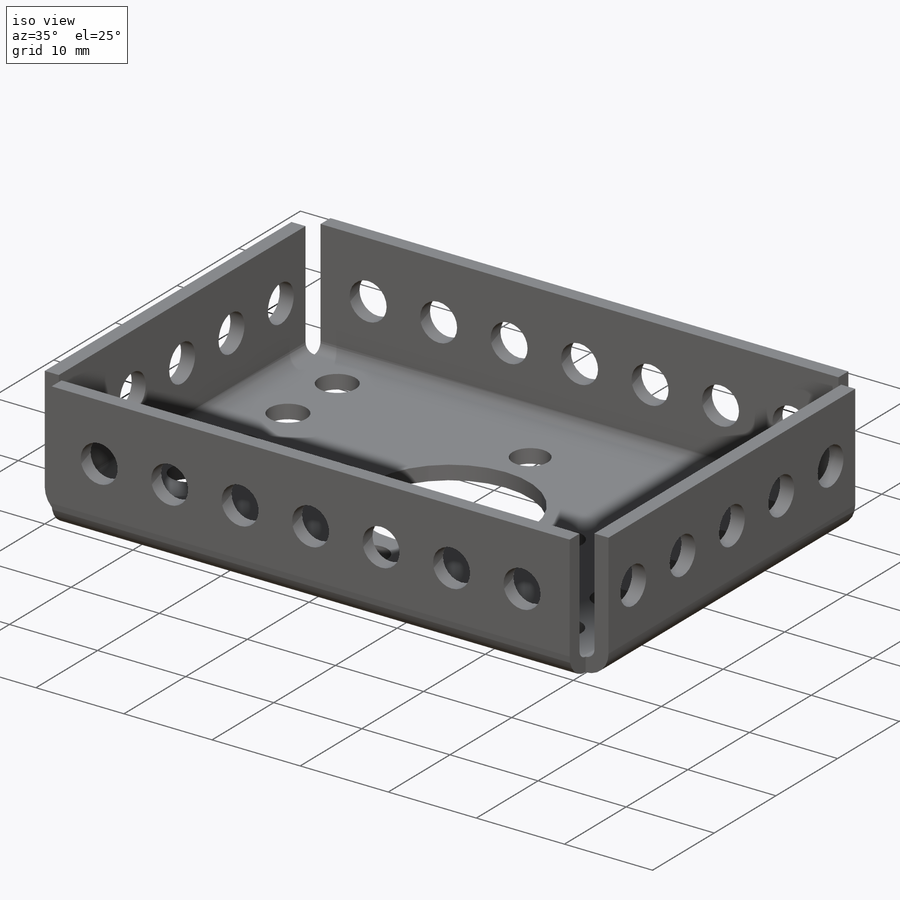
[diagram: iso view]
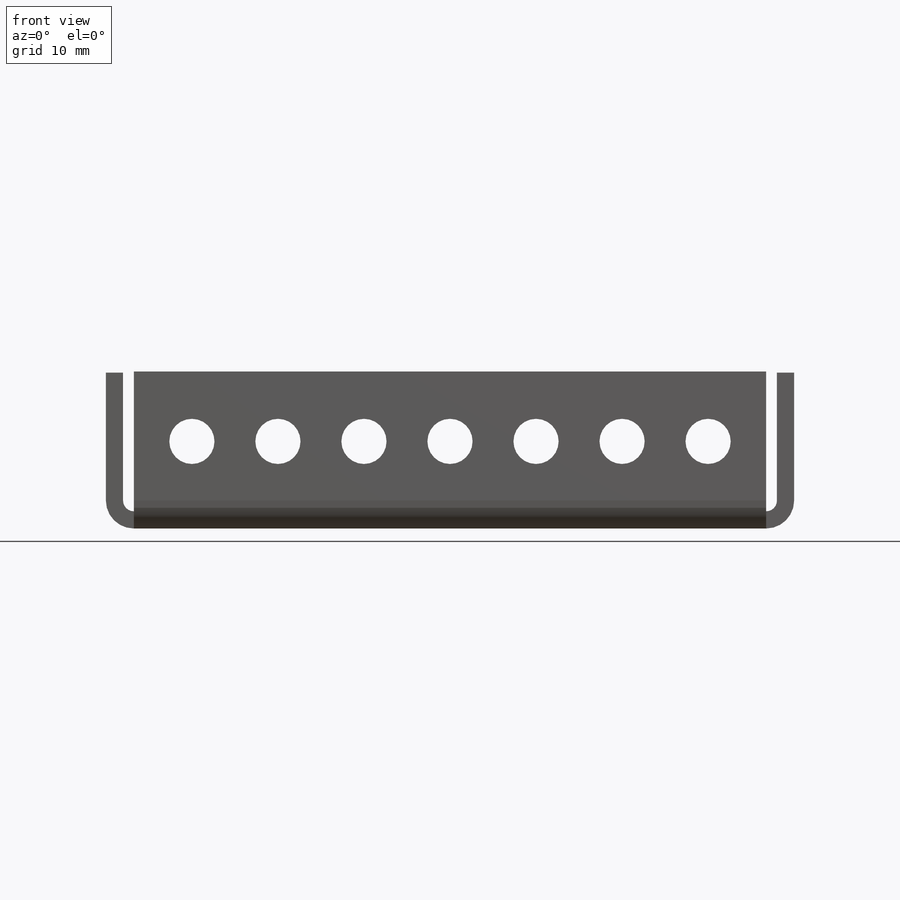
[diagram: front view]
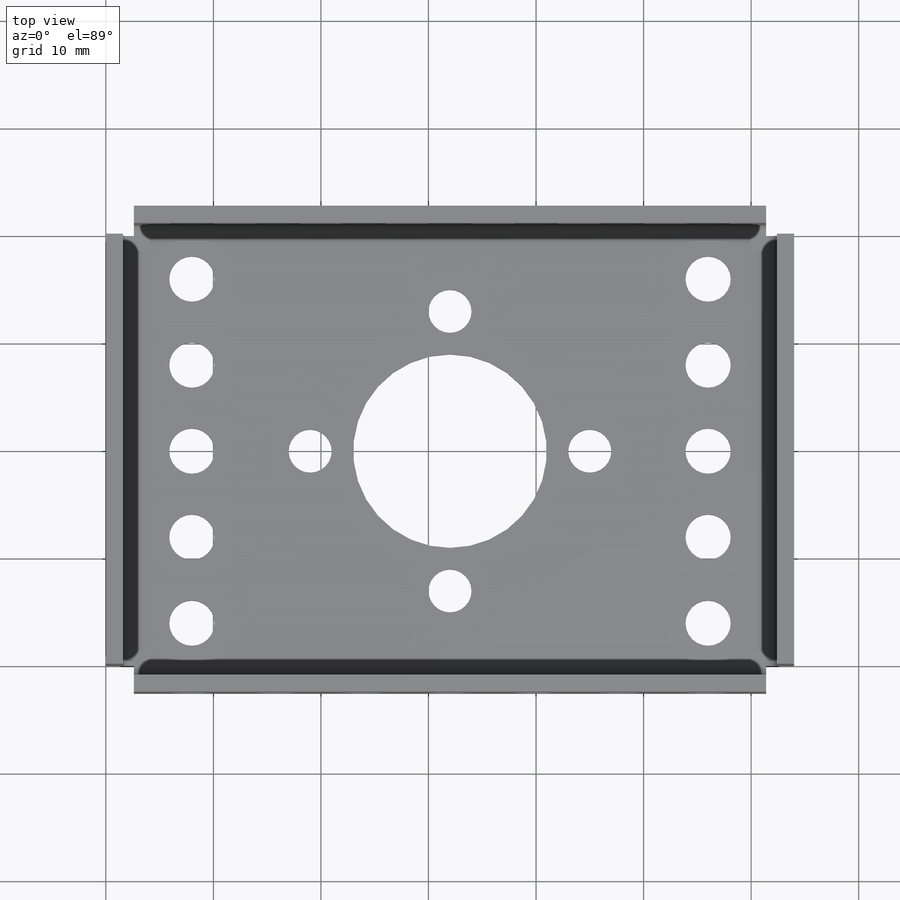
[diagram: top view]
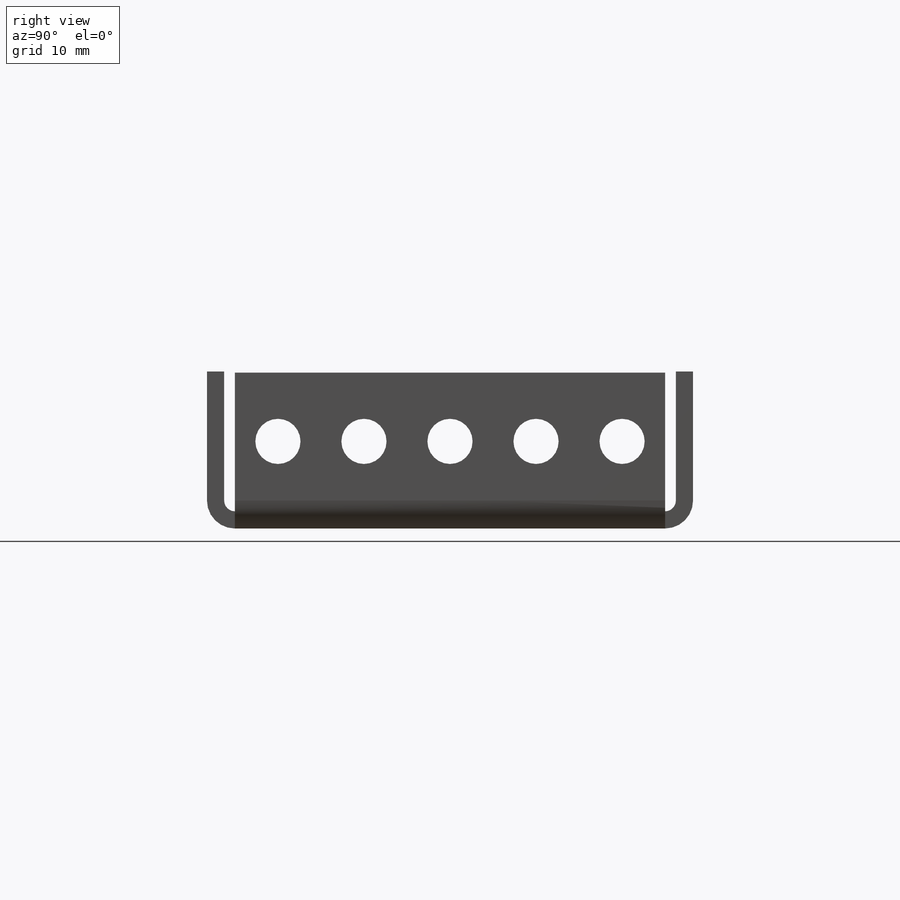
[diagram: right view]
SOLIDWORKS PART (.sldprt)
format: sldprt  version: not decoded by parser v0  size: 642,048 bytes
history: native  units: mm
features: sketch x27, sheet_metal_op x8, cut_extrude x4, pattern_linear x3, material x1, extrude x1 + 8 further entries (+13 scaffold rows collapsed; 8 parser-record rows omitted)
feature tree (73):
  scaffold x13  (default folders/planes/origin — collapsed)
  material  "1060 Alloy"
  sketch  "Sketch1"  dims[D1=40.0mm D2=64.0mm]
  extrude  "Boss-Extrude1"  Depth=1.6mm
  sketch  "Sketch2"  dims[D1=4.2mm D2=8.0mm D3=4.0mm]
  cut_extrude  "Cut-Extrude1"  [1 undecoded]
  pattern_linear  "LPattern1"  Count1=2 Spacing1=48mm Spacing2=0mm
  sketch  "Sketch12"
  sketch  "Sketch13"  dims[c1.D1=1.0mm c1.D4=90.0deg c1.EdgeBend2=0.0 c2.D1=1.0mm c2.D4=90.0deg c3.D1=0.5mm c3.D6=10.0mm c3.D7=14.5mm c3.D8=0.5mm]
  sketch  "Sketch14"  dims[c1.D1=~2.54843mm c1.D2=~2.54843mm c1.D3=4.2mm c2.D1=4.0mm c2.D2=8.1mm]
  cut_extrude  "Cut-Extrude2"  [1 undecoded]
  pattern_linear  "LPattern2"  Spacing1=8mm Spacing2=8mm  [1 undecoded]
  sketch  "Sketch23"
  sketch  "Sketch24"  dims[c1.EdgeBend3=0.0 c1.D1=1.0mm c1.D4=90.0deg c1.EdgeBend4=0.0 c2.D1=1.0mm c2.D4=90.0deg c3.D1=1.0mm c3.D6=10.0mm c3.D7=13.0mm c3.D8=0.5mm]
  sketch  "Sketch25"  dims[D3=4.2mm D1=8.0mm D2=8.1mm]
  cut_extrude  "Cut-Extrude3"  [1 undecoded]
  pattern_linear  "LPattern3"  Spacing1=0mm Spacing2=8mm  [1 undecoded]
  sketch  "Sketch26"  dims[D1=18.0mm D2=26.0mm D3=4.0mm D4=0.0mm]
  cut_extrude  "Cut-Extrude4"  [1 undecoded]
  sketch  "Bend-Lines1"
  sketch  "Bounding-Box1"
  sheet_metal_op  "Sheet-Metal(4)"
  "Flat-Pattern(4)"
  sketch  "Bend-Lines2"
  sketch  "Bounding-Box2"
  parser-record x8  (decoder bookkeeping rows leaked as tree rows — omitted from the tree; the rows remain in map.json)
  sheet_metal_op  "Sheet-Metal(5)"
  "Flat-Pattern(4)"
  sketch  "Bend-Lines2"
  sketch  "Bounding-Box2"
  sheet_metal_op  "Sheet-Metal(6)"
  "Flat-Pattern(4)"
  sketch  "Bend-Lines2"
  sketch  "Bounding-Box2"
  sheet_metal_op  "Sheet-Metal(7)"
  "Flat-Pattern(4)"
  sketch  "Bend-Lines2"
  sketch  "Bounding-Box2"
  sheet_metal_op  "Sheet-Metal(8)"
  "Flat-Pattern(4)"
  sketch  "Bend-Lines2"
  sketch  "Bounding-Box2"
  sheet_metal_op  "Sheet-Metal(9)"
  "Flat-Pattern(4)"
  sketch  "Bend-Lines2"
  sketch  "Bounding-Box2"
  sheet_metal_op  "Sheet-Metal(10)"
  "Flat-Pattern(4)"
  sketch  "Bend-Lines2"
  sketch  "Bounding-Box2"
  sheet_metal_op  "Sheet-Metal(11)"
  "Flat-Pattern(4)"
  sketch  "Bend-Lines2"
  sketch  "Bounding-Box2"
decode coverage: 11 of 43 modeling features carry decoded parameters; 8 rows unclassified (native names shown)
note: ~ marks probable driven/reference dimensions
note: 6 parameter values undecoded
summary: no parameter record found for 4 features
note: suppression state not decoded; provenance and decode notes live in map.json
